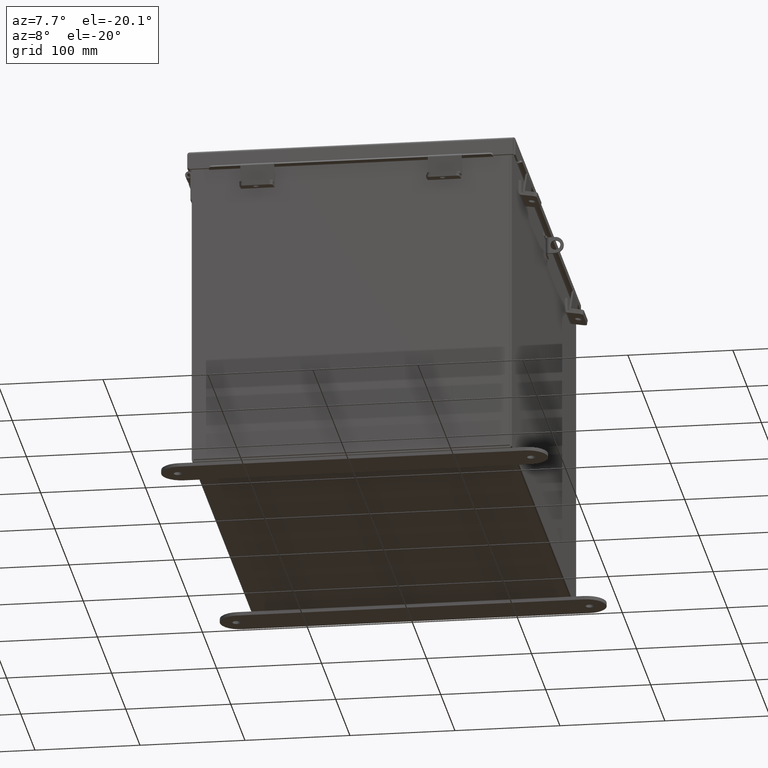
[diagram: clean part render]
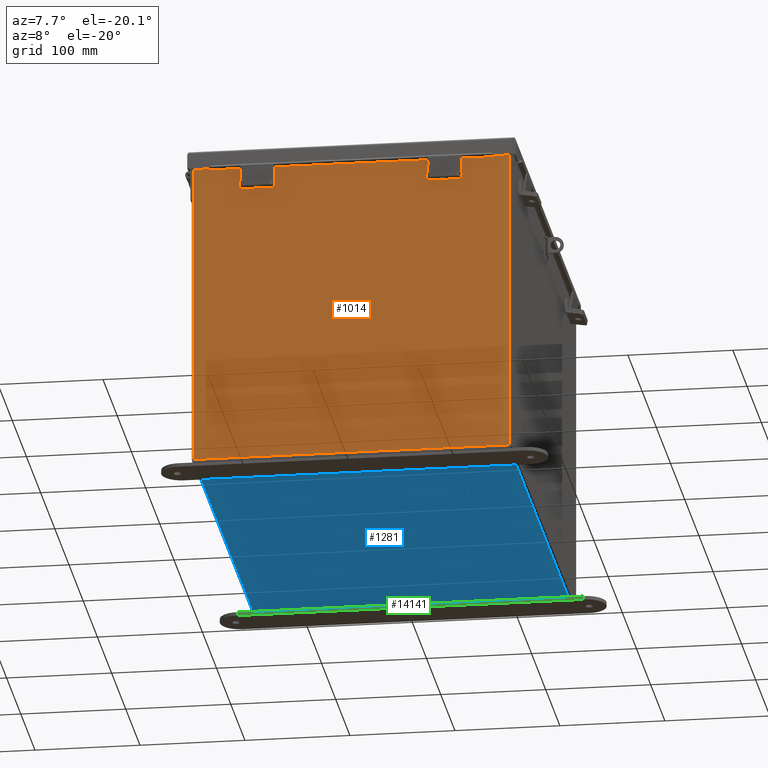
[diagram: same view with three faces highlighted in distinct colors, each labeled with its STEP entity id]
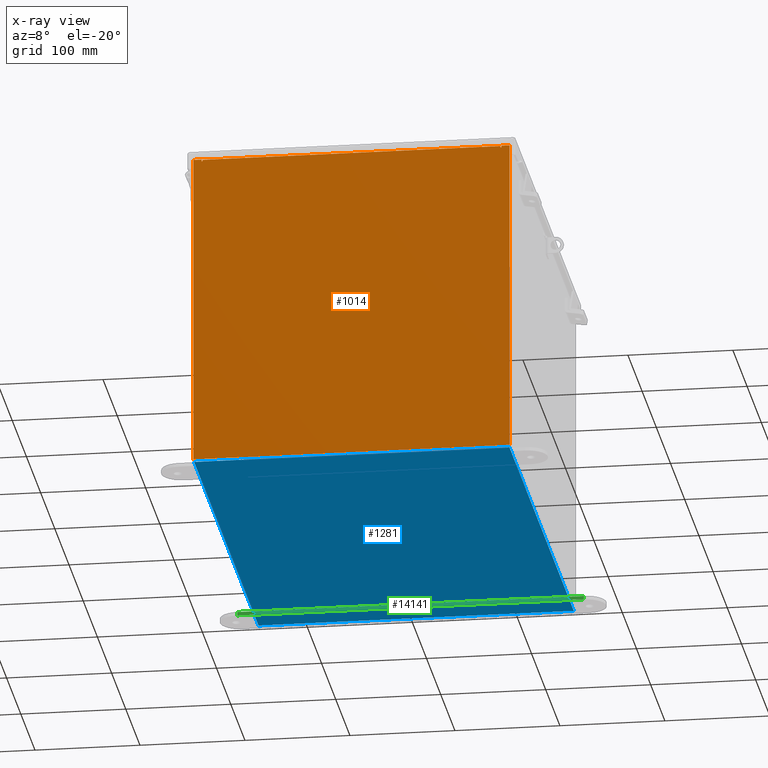
[diagram: x-ray of the same camera — body ghosted, the three highlighted faces saturated]
A machine part, auxiliary view with three faces highlighted in distinct colors.
The next image is the same camera in x-ray (body ghosted, the three faces saturated) — at least one of them is partly hidden behind the body in this view.
Their STEP definitions:

[orange] entity #1014 — the highlighted planar face has unit normal (-0, 1, -0).
#129 = CARTESIAN_POINT ( 'NONE',  ( 5.582300000000000000, 0.0000000000000000000, 5.912299999999996600 ) ) ;
#338 = ORIENTED_EDGE ( 'NONE', *, *, #9999, .F. ) ;
#721 = CARTESIAN_POINT ( 'NONE',  ( -5.925300000000000000, -9.834652777191348400E-015, 5.925300000000001800 ) ) ;
#789 = VECTOR ( 'NONE', #14120, 39.37007874015748100 ) ;
#1014 = ADVANCED_FACE ( 'NONE', ( #7710 ), #5631, .F. ) ;
#1036 = DIRECTION ( 'NONE',  ( 9.220960942616447800E-017, 0.0000000000000000000, -1.000000000000000000 ) ) ;
#1072 = LINE ( 'NONE', #8303, #12598 ) ;
#1360 = VERTEX_POINT ( 'NONE', #2940 ) ;
#1509 = VERTEX_POINT ( 'NONE', #9243 ) ;
#1717 = VECTOR ( 'NONE', #7511, 39.37007874015748100 ) ;
#1788 = VECTOR ( 'NONE', #15604, 39.37007874015748100 ) ;
#2289 = VERTEX_POINT ( 'NONE', #16730 ) ;
#2341 = VECTOR ( 'NONE', #18185, 39.37007874015748100 ) ;
#2562 = EDGE_CURVE ( 'NONE', #18623, #16591, #1072, .T. ) ;
#2811 = CARTESIAN_POINT ( 'NONE',  ( -5.600975000000008000, -9.834652777191348400E-015, 5.874949999999998300 ) ) ;
#2940 = CARTESIAN_POINT ( 'NONE',  ( 5.619649999999999100, 0.0000000000000000000, 5.925299999999999100 ) ) ;
#3198 = ORIENTED_EDGE ( 'NONE', *, *, #11670, .T. ) ;
#3387 = CARTESIAN_POINT ( 'NONE',  ( 5.619649999999990300, 0.0000000000000000000, 5.874949999999998300 ) ) ;
#3923 = EDGE_CURVE ( 'NONE', #16591, #10249, #14402, .T. ) ;
#4139 = CARTESIAN_POINT ( 'NONE',  ( -5.925300000000000000, -9.834652777191348400E-015, 5.925300000000001800 ) ) ;
#4285 = VECTOR ( 'NONE', #1036, 39.37007874015748100 ) ;
#4339 = DIRECTION ( 'NONE',  ( 0.0000000000000000000, 0.0000000000000000000, -1.000000000000000000 ) ) ;
#4778 = CIRCLE ( 'NONE', #16914, 0.01867499999999949400 ) ;
#5141 = DIRECTION ( 'NONE',  ( 0.0000000000000000000, 0.0000000000000000000, 1.000000000000000000 ) ) ;
#5165 = CARTESIAN_POINT ( 'NONE',  ( -5.582299999999999200, 0.0000000000000000000, -9.834652777191348400E-015 ) ) ;
#5334 = ORIENTED_EDGE ( 'NONE', *, *, #13933, .F. ) ;
#5631 = PLANE ( 'NONE',  #9514 ) ;
#5780 = DIRECTION ( 'NONE',  ( 1.000000000000000000, 5.526334185345597900E-031, -0.0000000000000000000 ) ) ;
#5917 = DIRECTION ( 'NONE',  ( 5.526334185345597900E-031, 1.000000000000000000, -0.0000000000000000000 ) ) ;
#6010 = CARTESIAN_POINT ( 'NONE',  ( -5.619649999999999100, 0.0000000000000000000, -9.834652777191348400E-015 ) ) ;
#6072 = ORIENTED_EDGE ( 'NONE', *, *, #2562, .T. ) ;
#6447 = EDGE_LOOP ( 'NONE', ( #13101, #338, #5334, #18758, #12620, #6624, #7277, #8105, #3198, #6072, #18565, #11750 ) ) ;
#6486 = EDGE_CURVE ( 'NONE', #9735, #11967, #7285, .T. ) ;
#6617 = VERTEX_POINT ( 'NONE', #7545 ) ;
#6624 = ORIENTED_EDGE ( 'NONE', *, *, #14864, .F. ) ;
#6635 = CARTESIAN_POINT ( 'NONE',  ( -5.582299999999999200, -7.649174382259936200E-015, 5.912299999999996600 ) ) ;
#6825 = VECTOR ( 'NONE', #5780, 39.37007874015748100 ) ;
#7097 = CARTESIAN_POINT ( 'NONE',  ( -5.619650000000008000, -9.834652777191348400E-015, 5.874949999999998300 ) ) ;
#7122 = DIRECTION ( 'NONE',  ( -5.526334185345597900E-031, -1.000000000000000000, -0.0000000000000000000 ) ) ;
#7198 = CARTESIAN_POINT ( 'NONE',  ( -5.582300000000000000, -7.649174382259936200E-015, 5.912299999999996600 ) ) ;
#7277 = ORIENTED_EDGE ( 'NONE', *, *, #8994, .F. ) ;
#7285 = LINE ( 'NONE', #7198, #6825 ) ;
#7495 = VERTEX_POINT ( 'NONE', #7097 ) ;
#7511 = DIRECTION ( 'NONE',  ( 0.0000000000000000000, 0.0000000000000000000, 1.000000000000000000 ) ) ;
#7545 = CARTESIAN_POINT ( 'NONE',  ( -5.619649999999999100, -9.834652777191348400E-015, 5.925299999999999100 ) ) ;
#7623 = LINE ( 'NONE', #4139, #19066 ) ;
#7710 = FACE_OUTER_BOUND ( 'NONE', #6447, .T. ) ;
#7892 = CARTESIAN_POINT ( 'NONE',  ( 5.925300000000001800, 0.0000000000000000000, -5.925300000000000000 ) ) ;
#8090 = CARTESIAN_POINT ( 'NONE',  ( 5.582300000000000000, 0.0000000000000000000, 0.0000000000000000000 ) ) ;
#8105 = ORIENTED_EDGE ( 'NONE', *, *, #16491, .T. ) ;
#8115 = CARTESIAN_POINT ( 'NONE',  ( 5.619650000000000000, 0.0000000000000000000, 0.0000000000000000000 ) ) ;
#8303 = CARTESIAN_POINT ( 'NONE',  ( -5.925300000000000000, -9.834652777191348400E-015, -5.925300000000008900 ) ) ;
#8994 = EDGE_CURVE ( 'NONE', #1360, #13359, #10245, .T. ) ;
#9243 = CARTESIAN_POINT ( 'NONE',  ( 5.582299999999989400, 0.0000000000000000000, 5.874949999999998300 ) ) ;
#9514 = AXIS2_PLACEMENT_3D ( 'NONE', #14573, #7122, #17564 ) ;
#9716 = LINE ( 'NONE', #6010, #1717 ) ;
#9735 = VERTEX_POINT ( 'NONE', #6635 ) ;
#9786 = DIRECTION ( 'NONE',  ( 0.0000000000000000000, 0.0000000000000000000, 1.000000000000000000 ) ) ;
#9955 = EDGE_CURVE ( 'NONE', #10249, #6617, #7623, .T. ) ;
#9999 = EDGE_CURVE ( 'NONE', #2289, #7495, #14629, .T. ) ;
#10098 = DIRECTION ( 'NONE',  ( 1.000000000000000000, 5.526334185345597900E-031, 0.0000000000000000000 ) ) ;
#10245 = LINE ( 'NONE', #8115, #1788 ) ;
#10249 = VERTEX_POINT ( 'NONE', #13883 ) ;
#10328 = LINE ( 'NONE', #13693, #2341 ) ;
#10435 = VECTOR ( 'NONE', #9786, 39.37007874015748100 ) ;
#11073 = VERTEX_POINT ( 'NONE', #13019 ) ;
#11351 = LINE ( 'NONE', #5165, #789 ) ;
#11542 = CARTESIAN_POINT ( 'NONE',  ( 5.925300000000000000, 0.0000000000000000000, 5.925300000000001800 ) ) ;
#11670 = EDGE_CURVE ( 'NONE', #11073, #18623, #11794, .T. ) ;
#11750 = ORIENTED_EDGE ( 'NONE', *, *, #9955, .T. ) ;
#11794 = LINE ( 'NONE', #11542, #4285 ) ;
#11967 = VERTEX_POINT ( 'NONE', #129 ) ;
#12598 = VECTOR ( 'NONE', #17297, 39.37007874015748100 ) ;
#12620 = ORIENTED_EDGE ( 'NONE', *, *, #18709, .F. ) ;
#13019 = CARTESIAN_POINT ( 'NONE',  ( 5.925300000000000000, 0.0000000000000000000, 5.925300000000001800 ) ) ;
#13101 = ORIENTED_EDGE ( 'NONE', *, *, #14278, .F. ) ;
#13301 = DIRECTION ( 'NONE',  ( 5.526334185345597900E-031, 1.000000000000000000, -0.0000000000000000000 ) ) ;
#13359 = VERTEX_POINT ( 'NONE', #3387 ) ;
#13693 = CARTESIAN_POINT ( 'NONE',  ( -5.925300000000000000, -9.834652777191348400E-015, 5.925300000000001800 ) ) ;
#13883 = CARTESIAN_POINT ( 'NONE',  ( -5.925300000000000000, -9.834652777191348400E-015, 5.925300000000001800 ) ) ;
#13933 = EDGE_CURVE ( 'NONE', #9735, #2289, #11351, .T. ) ;
#13950 = CARTESIAN_POINT ( 'NONE',  ( -5.925300000000000000, -9.834652777191348400E-015, -5.925300000000008900 ) ) ;
#14120 = DIRECTION ( 'NONE',  ( 0.0000000000000000000, 0.0000000000000000000, -1.000000000000000000 ) ) ;
#14278 = EDGE_CURVE ( 'NONE', #7495, #6617, #9716, .T. ) ;
#14402 = LINE ( 'NONE', #721, #10435 ) ;
#14573 = CARTESIAN_POINT ( 'NONE',  ( 0.0000000000000000000, 0.0000000000000000000, 0.0000000000000000000 ) ) ;
#14629 = CIRCLE ( 'NONE', #16676, 0.01867499999999949400 ) ;
#14861 = CARTESIAN_POINT ( 'NONE',  ( 5.600974999999990300, 0.0000000000000000000, 5.874949999999998300 ) ) ;
#14864 = EDGE_CURVE ( 'NONE', #13359, #1509, #4778, .T. ) ;
#15604 = DIRECTION ( 'NONE',  ( 0.0000000000000000000, 0.0000000000000000000, -1.000000000000000000 ) ) ;
#16362 = DIRECTION ( 'NONE',  ( 0.0000000000000000000, 0.0000000000000000000, -1.000000000000000000 ) ) ;
#16491 = EDGE_CURVE ( 'NONE', #1360, #11073, #10328, .T. ) ;
#16591 = VERTEX_POINT ( 'NONE', #13950 ) ;
#16676 = AXIS2_PLACEMENT_3D ( 'NONE', #2811, #13301, #4339 ) ;
#16730 = CARTESIAN_POINT ( 'NONE',  ( -5.582300000000008900, -9.834652777191348400E-015, 5.874949999999998300 ) ) ;
#16914 = AXIS2_PLACEMENT_3D ( 'NONE', #14861, #5917, #16362 ) ;
#17297 = DIRECTION ( 'NONE',  ( -1.000000000000000000, -5.532854492637916100E-031, 9.220960942616447800E-017 ) ) ;
#17564 = DIRECTION ( 'NONE',  ( 0.0000000000000000000, 0.0000000000000000000, -1.000000000000000000 ) ) ;
#18185 = DIRECTION ( 'NONE',  ( 1.000000000000000000, 5.526334185345597900E-031, 0.0000000000000000000 ) ) ;
#18208 = VECTOR ( 'NONE', #5141, 39.37007874015748100 ) ;
#18565 = ORIENTED_EDGE ( 'NONE', *, *, #3923, .T. ) ;
#18623 = VERTEX_POINT ( 'NONE', #7892 ) ;
#18675 = LINE ( 'NONE', #8090, #18208 ) ;
#18709 = EDGE_CURVE ( 'NONE', #1509, #11967, #18675, .T. ) ;
#18758 = ORIENTED_EDGE ( 'NONE', *, *, #6486, .T. ) ;
#19066 = VECTOR ( 'NONE', #10098, 39.37007874015748100 ) ;

[blue] entity #1281 — the highlighted planar face has unit normal (0, 0, -1).
#903 = VECTOR ( 'NONE', #7646, 39.37007874015748100 ) ;
#1281 = ADVANCED_FACE ( 'NONE', ( #3489 ), #2726, .T. ) ;
#1984 = CARTESIAN_POINT ( 'NONE',  ( 5.912299999999999200, 8.925299999999998200, -0.07469999999999994700 ) ) ;
#2168 = VECTOR ( 'NONE', #4082, 39.37007874015748100 ) ;
#2726 = PLANE ( 'NONE',  #7108 ) ;
#3489 = FACE_OUTER_BOUND ( 'NONE', #5136, .T. ) ;
#4082 = DIRECTION ( 'NONE',  ( 1.000000000000000000, -9.106159978880878600E-017, 0.0000000000000000000 ) ) ;
#4263 = DIRECTION ( 'NONE',  ( 0.0000000000000000000, 0.0000000000000000000, -1.000000000000000000 ) ) ;
#5020 = DIRECTION ( 'NONE',  ( -0.0000000000000000000, -1.000000000000000000, -0.0000000000000000000 ) ) ;
#5136 = EDGE_LOOP ( 'NONE', ( #12158, #16375, #5204, #16370 ) ) ;
#5204 = ORIENTED_EDGE ( 'NONE', *, *, #14730, .F. ) ;
#5245 = VECTOR ( 'NONE', #18147, 39.37007874015748100 ) ;
#5380 = LINE ( 'NONE', #10602, #903 ) ;
#6177 = LINE ( 'NONE', #18967, #2168 ) ;
#6199 = CARTESIAN_POINT ( 'NONE',  ( -6.000000000000001800, 8.925299999999996500, -0.07470000000000000300 ) ) ;
#7108 = AXIS2_PLACEMENT_3D ( 'NONE', #13229, #4263, #14719 ) ;
#7287 = VERTEX_POINT ( 'NONE', #10915 ) ;
#7339 = EDGE_CURVE ( 'NONE', #14246, #18735, #15672, .T. ) ;
#7646 = DIRECTION ( 'NONE',  ( -0.0000000000000000000, 1.000000000000000000, -8.208677865577646300E-017 ) ) ;
#10394 = CARTESIAN_POINT ( 'NONE',  ( 5.912299999999999200, 8.925299999999996500, -0.07469999999999994700 ) ) ;
#10602 = CARTESIAN_POINT ( 'NONE',  ( -5.912300000000001000, -8.925300000000001800, -0.07469999999999867000 ) ) ;
#10915 = CARTESIAN_POINT ( 'NONE',  ( -5.912300000000001000, 8.925299999999996500, -0.07470000000000000300 ) ) ;
#10919 = VERTEX_POINT ( 'NONE', #14191 ) ;
#11157 = CARTESIAN_POINT ( 'NONE',  ( 5.912299999999999200, -8.925300000000003600, -0.07470000000000000300 ) ) ;
#12158 = ORIENTED_EDGE ( 'NONE', *, *, #14358, .F. ) ;
#13229 = CARTESIAN_POINT ( 'NONE',  ( 0.0000000000000000000, 0.0000000000000000000, -0.07470000000000000300 ) ) ;
#13596 = VECTOR ( 'NONE', #5020, 39.37007874015748100 ) ;
#14191 = CARTESIAN_POINT ( 'NONE',  ( -5.912300000000001000, -8.925300000000001800, -0.07469999999999867000 ) ) ;
#14246 = VERTEX_POINT ( 'NONE', #10394 ) ;
#14358 = EDGE_CURVE ( 'NONE', #14246, #7287, #16227, .T. ) ;
#14719 = DIRECTION ( 'NONE',  ( -1.000000000000000000, 0.0000000000000000000, -0.0000000000000000000 ) ) ;
#14730 = EDGE_CURVE ( 'NONE', #10919, #18735, #6177, .T. ) ;
#15672 = LINE ( 'NONE', #1984, #13596 ) ;
#16227 = LINE ( 'NONE', #6199, #5245 ) ;
#16370 = ORIENTED_EDGE ( 'NONE', *, *, #17107, .T. ) ;
#16375 = ORIENTED_EDGE ( 'NONE', *, *, #7339, .T. ) ;
#17107 = EDGE_CURVE ( 'NONE', #10919, #7287, #5380, .T. ) ;
#18147 = DIRECTION ( 'NONE',  ( -1.000000000000000000, -0.0000000000000000000, -0.0000000000000000000 ) ) ;
#18735 = VERTEX_POINT ( 'NONE', #11157 ) ;
#18967 = CARTESIAN_POINT ( 'NONE',  ( -6.000000000000001800, -8.925300000000003600, -0.07470000000000000300 ) ) ;

[green] entity #14141 — the highlighted planar face has unit normal (-0, -1, 0).
#1906 = EDGE_CURVE ( 'NONE', #14272, #18035, #2300, .T. ) ;
#2283 = EDGE_CURVE ( 'NONE', #18970, #5363, #11668, .T. ) ;
#2300 = LINE ( 'NONE', #13345, #18221 ) ;
#2684 = CARTESIAN_POINT ( 'NONE',  ( -6.500000000000000000, 1.162094064949612300, -0.1345000000000000100 ) ) ;
#2708 = DIRECTION ( 'NONE',  ( -1.260852920152736700E-016, 1.000000000000000000, 0.0000000000000000000 ) ) ;
#3274 = CARTESIAN_POINT ( 'NONE',  ( -6.500000000000000000, 1.162094064949612300, 0.0000000000000000000 ) ) ;
#3280 = DIRECTION ( 'NONE',  ( 0.0000000000000000000, 0.0000000000000000000, 1.000000000000000000 ) ) ;
#3708 = VECTOR ( 'NONE', #3280, 39.37007874015748100 ) ;
#4468 = DIRECTION ( 'NONE',  ( -1.000000000000000000, -1.260852920152736700E-016, -0.0000000000000000000 ) ) ;
#4881 = ORIENTED_EDGE ( 'NONE', *, *, #16707, .F. ) ;
#5305 = ORIENTED_EDGE ( 'NONE', *, *, #6575, .T. ) ;
#5363 = VERTEX_POINT ( 'NONE', #3274 ) ;
#5415 = LINE ( 'NONE', #14917, #17336 ) ;
#5785 = ORIENTED_EDGE ( 'NONE', *, *, #2283, .T. ) ;
#6575 = EDGE_CURVE ( 'NONE', #14272, #18970, #5415, .T. ) ;
#6676 = ORIENTED_EDGE ( 'NONE', *, *, #1906, .F. ) ;
#6749 = DIRECTION ( 'NONE',  ( -1.000000000000000000, -1.260852920152736700E-016, -0.0000000000000000000 ) ) ;
#7604 = FACE_OUTER_BOUND ( 'NONE', #12913, .T. ) ;
#10563 = VECTOR ( 'NONE', #6749, 39.37007874015748100 ) ;
#11022 = LINE ( 'NONE', #17194, #10563 ) ;
#11668 = LINE ( 'NONE', #12254, #3708 ) ;
#11705 = CARTESIAN_POINT ( 'NONE',  ( -6.500000000000000000, 1.162094064949612300, -0.1345000000000000100 ) ) ;
#12254 = CARTESIAN_POINT ( 'NONE',  ( -6.500000000000000000, 1.162094064949612300, -0.1345000000000000100 ) ) ;
#12913 = EDGE_LOOP ( 'NONE', ( #4881, #6676, #5305, #5785 ) ) ;
#13208 = DIRECTION ( 'NONE',  ( -1.000000000000000000, -1.260852920152736700E-016, 0.0000000000000000000 ) ) ;
#13345 = CARTESIAN_POINT ( 'NONE',  ( 6.500000000000000000, 1.162094064949614100, -0.1345000000000000100 ) ) ;
#14141 = ADVANCED_FACE ( 'NONE', ( #7604 ), #14624, .T. ) ;
#14272 = VERTEX_POINT ( 'NONE', #16388 ) ;
#14624 = PLANE ( 'NONE',  #17101 ) ;
#14763 = DIRECTION ( 'NONE',  ( 0.0000000000000000000, 0.0000000000000000000, 1.000000000000000000 ) ) ;
#14917 = CARTESIAN_POINT ( 'NONE',  ( -6.500000000000000000, 1.162094064949612300, -0.1345000000000000100 ) ) ;
#15543 = CARTESIAN_POINT ( 'NONE',  ( 6.500000000000000000, 1.162094064949614100, 0.0000000000000000000 ) ) ;
#16388 = CARTESIAN_POINT ( 'NONE',  ( 6.500000000000000000, 1.162094064949614100, -0.1345000000000000100 ) ) ;
#16707 = EDGE_CURVE ( 'NONE', #18035, #5363, #11022, .T. ) ;
#17101 = AXIS2_PLACEMENT_3D ( 'NONE', #11705, #2708, #13208 ) ;
#17194 = CARTESIAN_POINT ( 'NONE',  ( -6.500000000000000000, 1.162094064949612300, 0.0000000000000000000 ) ) ;
#17336 = VECTOR ( 'NONE', #4468, 39.37007874015748100 ) ;
#18035 = VERTEX_POINT ( 'NONE', #15543 ) ;
#18221 = VECTOR ( 'NONE', #14763, 39.37007874015748100 ) ;
#18970 = VERTEX_POINT ( 'NONE', #2684 ) ;